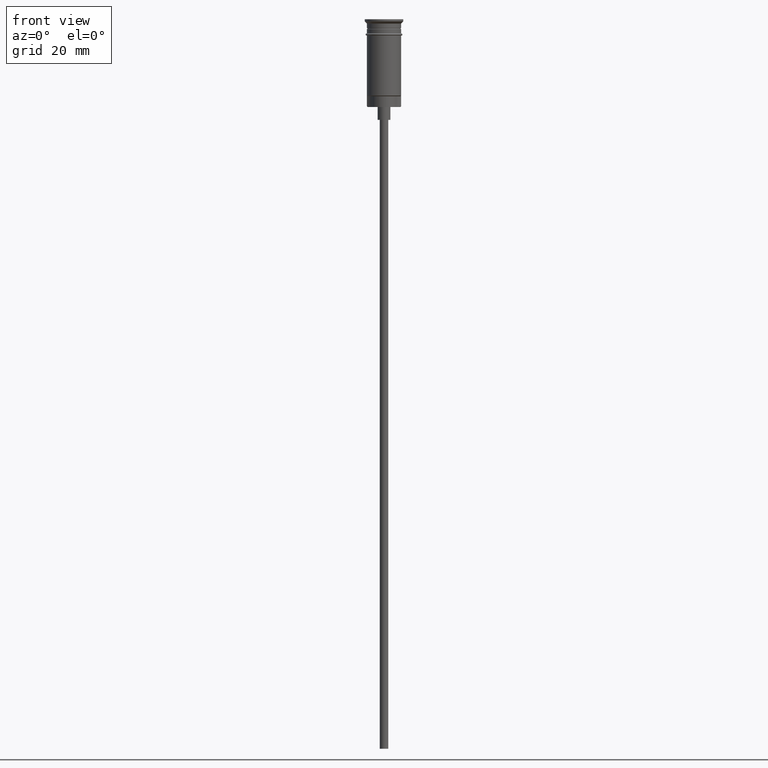
[diagram: clean part render]
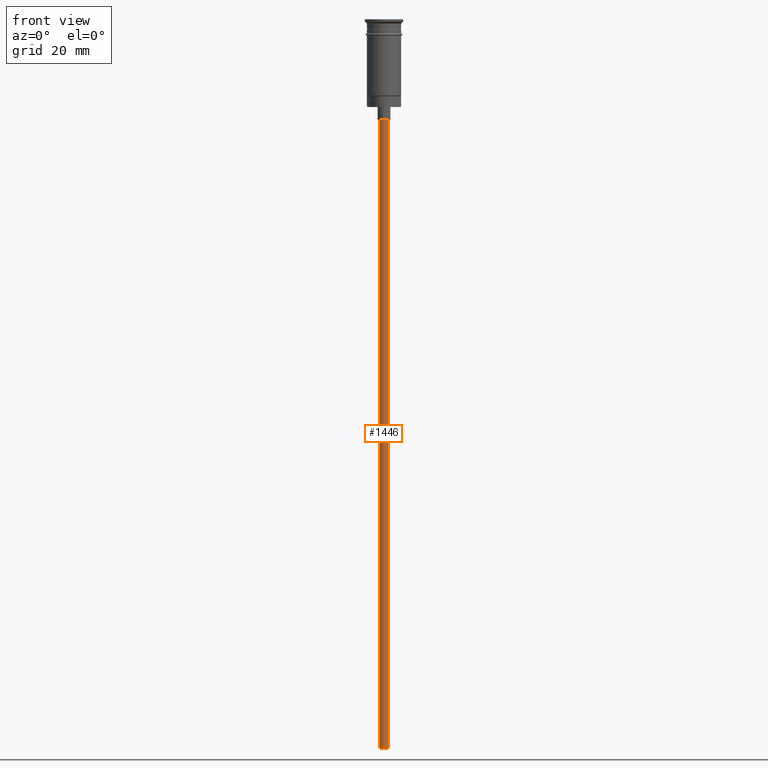
[diagram: same view with one face highlighted and labeled with its STEP entity id]
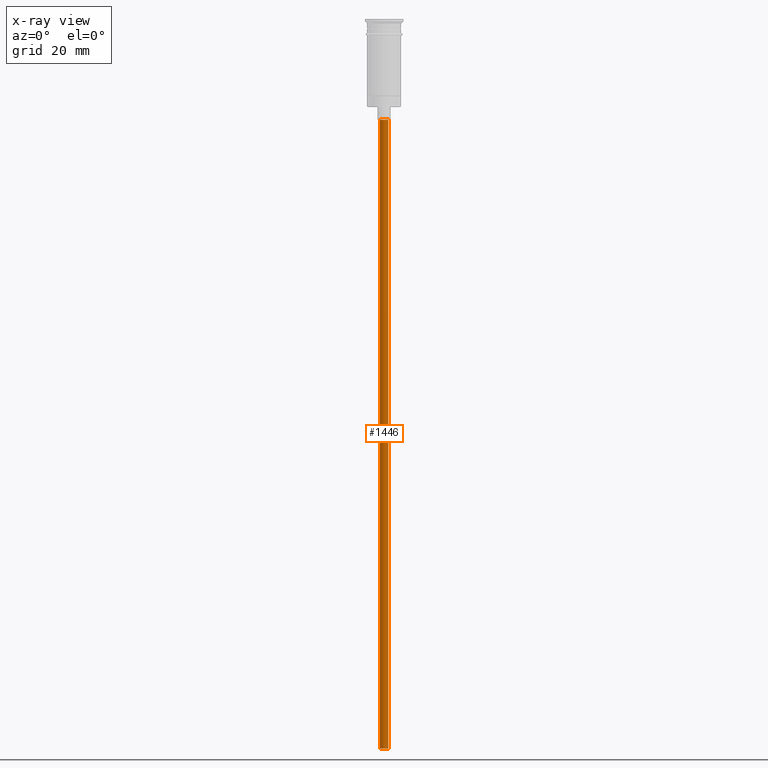
[diagram: x-ray of the same camera — body ghosted, the highlighted face saturated]
A machine part, front view. The second image highlights one B-rep face of the part: STEP entity #1446.
The next image is the same camera in x-ray: the body ghosted, the highlighted face saturated — about 0% of this face is hidden behind the body in this view.
In plain terms, the highlighted cylindrical surface (edge-blend (fillet) strip) has radius 1 mm, axis along (-0, -0, 1).
Its self-contained STEP definition (entity closure, byte-faithful):
#40 = CARTESIAN_POINT ( 'NONE',  ( 0.9999999999999997780, 0.000000000000000000, -23.49999999999999645 ) ) ;
#87 = EDGE_CURVE ( 'NONE', #1088, #221, #1355, .T. ) ;
#114 = LINE ( 'NONE', #605, #441 ) ;
#190 = VERTEX_POINT ( 'NONE', #536 ) ;
#221 = VERTEX_POINT ( 'NONE', #1290 ) ;
#245 = CARTESIAN_POINT ( 'NONE',  ( 0.000000000000000000, 0.000000000000000000, -23.49999999999999645 ) ) ;
#278 = EDGE_LOOP ( 'NONE', ( #849, #593, #854, #1078 ) ) ;
#401 = DIRECTION ( 'NONE',  ( -1.000000000000000000, 0.000000000000000000, 0.000000000000000000 ) ) ;
#426 = FACE_OUTER_BOUND ( 'NONE', #278, .T. ) ;
#441 = VECTOR ( 'NONE', #1245, 1000.000000000000000 ) ;
#519 = LINE ( 'NONE', #631, #1333 ) ;
#536 = CARTESIAN_POINT ( 'NONE',  ( -0.9999999999999997780, 1.224646799147352961E-16, -170.4999999999999716 ) ) ;
#548 = EDGE_CURVE ( 'NONE', #1535, #190, #1357, .T. ) ;
#555 = EDGE_CURVE ( 'NONE', #190, #221, #114, .T. ) ;
#593 = ORIENTED_EDGE ( 'NONE', *, *, #548, .F. ) ;
#605 = CARTESIAN_POINT ( 'NONE',  ( -0.9999999999999997780, 1.224646799147352961E-16, -170.4999999999999716 ) ) ;
#631 = CARTESIAN_POINT ( 'NONE',  ( 0.9999999999999997780, 0.000000000000000000, -170.4999999999999716 ) ) ;
#641 = CARTESIAN_POINT ( 'NONE',  ( 0.000000000000000000, 0.000000000000000000, -170.4999999999999716 ) ) ;
#752 = DIRECTION ( 'NONE',  ( -0.000000000000000000, -0.000000000000000000, 1.000000000000000000 ) ) ;
#810 = AXIS2_PLACEMENT_3D ( 'NONE', #245, #993, #401 ) ;
#849 = ORIENTED_EDGE ( 'NONE', *, *, #555, .F. ) ;
#853 = CARTESIAN_POINT ( 'NONE',  ( 0.000000000000000000, 0.000000000000000000, -170.4999999999999716 ) ) ;
#854 = ORIENTED_EDGE ( 'NONE', *, *, #1557, .T. ) ;
#919 = AXIS2_PLACEMENT_3D ( 'NONE', #641, #752, #1136 ) ;
#993 = DIRECTION ( 'NONE',  ( 0.000000000000000000, 0.000000000000000000, -1.000000000000000000 ) ) ;
#999 = AXIS2_PLACEMENT_3D ( 'NONE', #853, #1351, #1219 ) ;
#1006 = CYLINDRICAL_SURFACE ( 'NONE', #919, 0.9999999999999997780 ) ;
#1030 = DIRECTION ( 'NONE',  ( -0.000000000000000000, -0.000000000000000000, 1.000000000000000000 ) ) ;
#1078 = ORIENTED_EDGE ( 'NONE', *, *, #87, .T. ) ;
#1088 = VERTEX_POINT ( 'NONE', #40 ) ;
#1136 = DIRECTION ( 'NONE',  ( 1.000000000000000000, 0.000000000000000000, 0.000000000000000000 ) ) ;
#1219 = DIRECTION ( 'NONE',  ( -1.000000000000000000, 0.000000000000000000, 0.000000000000000000 ) ) ;
#1245 = DIRECTION ( 'NONE',  ( -0.000000000000000000, -0.000000000000000000, 1.000000000000000000 ) ) ;
#1264 = CARTESIAN_POINT ( 'NONE',  ( 0.9999999999999997780, 0.000000000000000000, -170.4999999999999716 ) ) ;
#1290 = CARTESIAN_POINT ( 'NONE',  ( -0.9999999999999997780, 1.224646799147352961E-16, -23.49999999999999645 ) ) ;
#1333 = VECTOR ( 'NONE', #1030, 1000.000000000000000 ) ;
#1351 = DIRECTION ( 'NONE',  ( 0.000000000000000000, 0.000000000000000000, -1.000000000000000000 ) ) ;
#1355 = CIRCLE ( 'NONE', #810, 0.9999999999999997780 ) ;
#1357 = CIRCLE ( 'NONE', #999, 0.9999999999999997780 ) ;
#1446 = ADVANCED_FACE ( 'NONE', ( #426 ), #1006, .T. ) ;
#1535 = VERTEX_POINT ( 'NONE', #1264 ) ;
#1557 = EDGE_CURVE ( 'NONE', #1535, #1088, #519, .T. ) ;